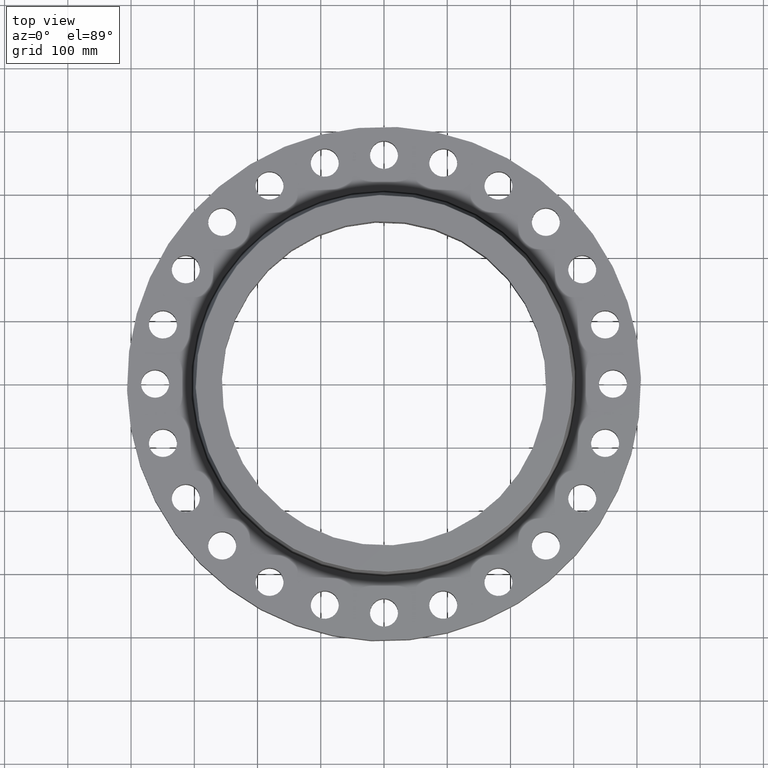
[diagram: clean part render]
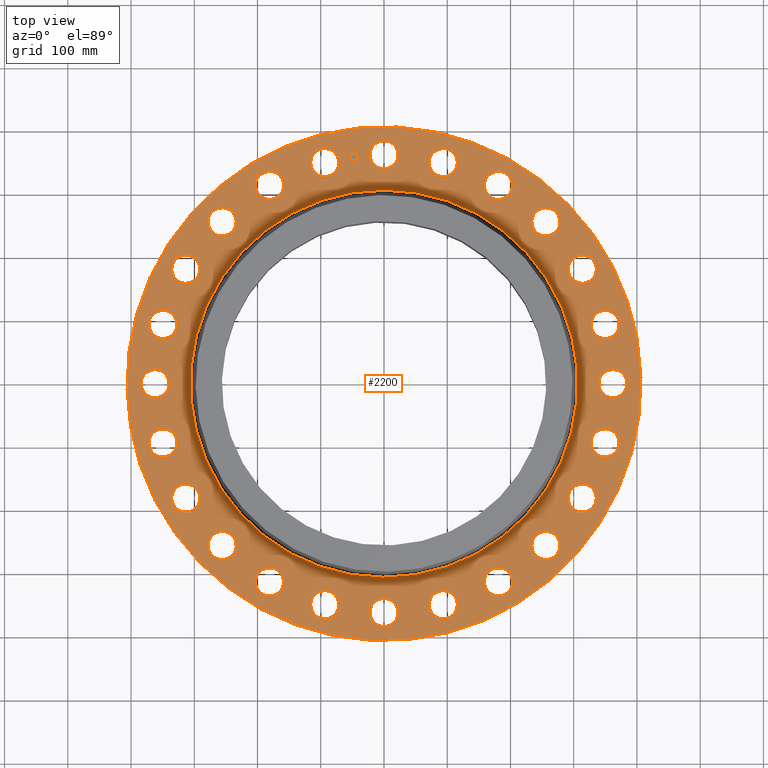
[diagram: same view with one face highlighted and labeled with its STEP entity id]
A machine part, top view. The second image highlights one B-rep face of the part: STEP entity #2200.
In plain terms, the highlighted planar face has unit normal (0, 0, -1).
Its self-contained STEP definition (entity closure, byte-faithful):
#65=AXIS2_PLACEMENT_3D('Circle Axis2P3D',#63,#64,$) ;
#82=AXIS2_PLACEMENT_3D('Circle Axis2P3D',#80,#81,$) ;
#115=AXIS2_PLACEMENT_3D('Circle Axis2P3D',#113,#114,$) ;
#139=AXIS2_PLACEMENT_3D('Circle Axis2P3D',#137,#138,$) ;
#156=AXIS2_PLACEMENT_3D('Circle Axis2P3D',#154,#155,$) ;
#191=AXIS2_PLACEMENT_3D('Circle Axis2P3D',#189,#190,$) ;
#873=AXIS2_PLACEMENT_3D('Circle Axis2P3D',#871,#872,$) ;
#885=AXIS2_PLACEMENT_3D('Circle Axis2P3D',#883,#884,$) ;
#916=AXIS2_PLACEMENT_3D('Circle Axis2P3D',#914,#915,$) ;
#928=AXIS2_PLACEMENT_3D('Circle Axis2P3D',#926,#927,$) ;
#959=AXIS2_PLACEMENT_3D('Circle Axis2P3D',#957,#958,$) ;
#971=AXIS2_PLACEMENT_3D('Circle Axis2P3D',#969,#970,$) ;
#1002=AXIS2_PLACEMENT_3D('Circle Axis2P3D',#1000,#1001,$) ;
#1014=AXIS2_PLACEMENT_3D('Circle Axis2P3D',#1012,#1013,$) ;
#1045=AXIS2_PLACEMENT_3D('Circle Axis2P3D',#1043,#1044,$) ;
#1057=AXIS2_PLACEMENT_3D('Circle Axis2P3D',#1055,#1056,$) ;
#1088=AXIS2_PLACEMENT_3D('Circle Axis2P3D',#1086,#1087,$) ;
#1100=AXIS2_PLACEMENT_3D('Circle Axis2P3D',#1098,#1099,$) ;
#1131=AXIS2_PLACEMENT_3D('Circle Axis2P3D',#1129,#1130,$) ;
#1143=AXIS2_PLACEMENT_3D('Circle Axis2P3D',#1141,#1142,$) ;
#1174=AXIS2_PLACEMENT_3D('Circle Axis2P3D',#1172,#1173,$) ;
#1186=AXIS2_PLACEMENT_3D('Circle Axis2P3D',#1184,#1185,$) ;
#1217=AXIS2_PLACEMENT_3D('Circle Axis2P3D',#1215,#1216,$) ;
#1229=AXIS2_PLACEMENT_3D('Circle Axis2P3D',#1227,#1228,$) ;
#1260=AXIS2_PLACEMENT_3D('Circle Axis2P3D',#1258,#1259,$) ;
#1272=AXIS2_PLACEMENT_3D('Circle Axis2P3D',#1270,#1271,$) ;
#1303=AXIS2_PLACEMENT_3D('Circle Axis2P3D',#1301,#1302,$) ;
#1315=AXIS2_PLACEMENT_3D('Circle Axis2P3D',#1313,#1314,$) ;
#1346=AXIS2_PLACEMENT_3D('Circle Axis2P3D',#1344,#1345,$) ;
#1358=AXIS2_PLACEMENT_3D('Circle Axis2P3D',#1356,#1357,$) ;
#1389=AXIS2_PLACEMENT_3D('Circle Axis2P3D',#1387,#1388,$) ;
#1401=AXIS2_PLACEMENT_3D('Circle Axis2P3D',#1399,#1400,$) ;
#1432=AXIS2_PLACEMENT_3D('Circle Axis2P3D',#1430,#1431,$) ;
#1444=AXIS2_PLACEMENT_3D('Circle Axis2P3D',#1442,#1443,$) ;
#1475=AXIS2_PLACEMENT_3D('Circle Axis2P3D',#1473,#1474,$) ;
#1487=AXIS2_PLACEMENT_3D('Circle Axis2P3D',#1485,#1486,$) ;
#1518=AXIS2_PLACEMENT_3D('Circle Axis2P3D',#1516,#1517,$) ;
#1530=AXIS2_PLACEMENT_3D('Circle Axis2P3D',#1528,#1529,$) ;
#1561=AXIS2_PLACEMENT_3D('Circle Axis2P3D',#1559,#1560,$) ;
#1573=AXIS2_PLACEMENT_3D('Circle Axis2P3D',#1571,#1572,$) ;
#1604=AXIS2_PLACEMENT_3D('Circle Axis2P3D',#1602,#1603,$) ;
#1616=AXIS2_PLACEMENT_3D('Circle Axis2P3D',#1614,#1615,$) ;
#1647=AXIS2_PLACEMENT_3D('Circle Axis2P3D',#1645,#1646,$) ;
#1659=AXIS2_PLACEMENT_3D('Circle Axis2P3D',#1657,#1658,$) ;
#1690=AXIS2_PLACEMENT_3D('Circle Axis2P3D',#1688,#1689,$) ;
#1702=AXIS2_PLACEMENT_3D('Circle Axis2P3D',#1700,#1701,$) ;
#1733=AXIS2_PLACEMENT_3D('Circle Axis2P3D',#1731,#1732,$) ;
#1745=AXIS2_PLACEMENT_3D('Circle Axis2P3D',#1743,#1744,$) ;
#1776=AXIS2_PLACEMENT_3D('Circle Axis2P3D',#1774,#1775,$) ;
#1788=AXIS2_PLACEMENT_3D('Circle Axis2P3D',#1786,#1787,$) ;
#1819=AXIS2_PLACEMENT_3D('Circle Axis2P3D',#1817,#1818,$) ;
#1831=AXIS2_PLACEMENT_3D('Circle Axis2P3D',#1829,#1830,$) ;
#2076=AXIS2_PLACEMENT_3D('Plane Axis2P3D',#2073,#2074,#2075) ;
#2184=AXIS2_PLACEMENT_3D('Circle Axis2P3D',#2182,#2183,$) ;
#2193=AXIS2_PLACEMENT_3D('Circle Axis2P3D',#2191,#2192,$) ;
#46=CARTESIAN_POINT('Vertex',(-0.767884741657,14.6694973463,3.50000000001)) ;
#60=CARTESIAN_POINT('Vertex',(0.767884741657,13.8305026538,3.50000000001)) ;
#63=CARTESIAN_POINT('Axis2P3D Location',(0.,14.2500000001,3.50000000001)) ;
#80=CARTESIAN_POINT('Axis2P3D Location',(0.,14.2500000001,3.50000000001)) ;
#110=CARTESIAN_POINT('Vertex',(-7.6708086177,-14.0413209903,3.50000000001)) ;
#113=CARTESIAN_POINT('Axis2P3D Location',(0.,0.,3.50000000001)) ;
#117=CARTESIAN_POINT('Vertex',(7.6708086177,14.0413209903,3.50000000001)) ;
#137=CARTESIAN_POINT('Axis2P3D Location',(0.,0.,3.50000000001)) ;
#154=CARTESIAN_POINT('Axis2P3D Location',(0.,0.,3.50000000001)) ;
#158=CARTESIAN_POINT('Vertex',(5.77724361083,10.575173495,3.50000000001)) ;
#160=CARTESIAN_POINT('Vertex',(-5.77724361083,-10.575173495,3.50000000001)) ;
#189=CARTESIAN_POINT('Axis2P3D Location',(0.,0.,3.50000000001)) ;
#861=CARTESIAN_POINT('Vertex',(-3.05502559173,-14.3683895411,3.50000000001)) ;
#868=CARTESIAN_POINT('Vertex',(-4.32131719372,-13.1604965083,3.50000000001)) ;
#871=CARTESIAN_POINT('Axis2P3D Location',(-3.68817139273,-13.7644430247,3.50000000001)) ;
#883=CARTESIAN_POINT('Axis2P3D Location',(-3.68817139273,-13.7644430247,3.50000000001)) ;
#904=CARTESIAN_POINT('Vertex',(6.66974097972,13.0880997335,3.50000000001)) ;
#911=CARTESIAN_POINT('Vertex',(7.58025902034,11.5936242745,3.50000000001)) ;
#914=CARTESIAN_POINT('Axis2P3D Location',(7.12500000003,12.340862004,3.50000000001)) ;
#926=CARTESIAN_POINT('Axis2P3D Location',(7.12500000003,12.340862004,3.50000000001)) ;
#947=CARTESIAN_POINT('Vertex',(-6.66974097972,-13.0880997335,3.50000000001)) ;
#954=CARTESIAN_POINT('Vertex',(-7.58025902034,-11.5936242745,3.50000000001)) ;
#957=CARTESIAN_POINT('Axis2P3D Location',(-7.12500000003,-12.340862004,3.50000000001)) ;
#969=CARTESIAN_POINT('Axis2P3D Location',(-7.12500000003,-12.340862004,3.50000000001)) ;
#990=CARTESIAN_POINT('Vertex',(9.8299245422,10.9158775582,3.50000000001)) ;
#997=CARTESIAN_POINT('Vertex',(10.3226187217,9.23666570571,3.50000000001)) ;
#1000=CARTESIAN_POINT('Axis2P3D Location',(10.0762716319,10.0762716319,3.50000000001)) ;
#1012=CARTESIAN_POINT('Axis2P3D Location',(10.0762716319,10.0762716319,3.50000000001)) ;
#1033=CARTESIAN_POINT('Vertex',(-9.8299245422,-10.9158775582,3.50000000001)) ;
#1040=CARTESIAN_POINT('Vertex',(-10.3226187217,-9.23666570571,3.50000000001)) ;
#1043=CARTESIAN_POINT('Axis2P3D Location',(-10.0762716319,-10.0762716319,3.50000000001)) ;
#1055=CARTESIAN_POINT('Axis2P3D Location',(-10.0762716319,-10.0762716319,3.50000000001)) ;
#1076=CARTESIAN_POINT('Vertex',(12.3202149918,7.99975636662,3.50000000001)) ;
#1083=CARTESIAN_POINT('Vertex',(12.3615090161,6.25024363343,3.50000000001)) ;
#1086=CARTESIAN_POINT('Axis2P3D Location',(12.340862004,7.12500000003,3.50000000001)) ;
#1098=CARTESIAN_POINT('Axis2P3D Location',(12.340862004,7.12500000003,3.50000000001)) ;
#1119=CARTESIAN_POINT('Vertex',(-12.3202149918,-7.99975636662,3.50000000001)) ;
#1126=CARTESIAN_POINT('Vertex',(-12.3615090161,-6.25024363343,3.50000000001)) ;
#1129=CARTESIAN_POINT('Axis2P3D Location',(-12.340862004,-7.12500000003,3.50000000001)) ;
#1141=CARTESIAN_POINT('Axis2P3D Location',(-12.340862004,-7.12500000003,3.50000000001)) ;
#1162=CARTESIAN_POINT('Vertex',(13.9709031499,4.53846499889,3.50000000001)) ;
#1169=CARTESIAN_POINT('Vertex',(13.5579828994,2.83787778656,3.50000000001)) ;
#1172=CARTESIAN_POINT('Axis2P3D Location',(13.7644430247,3.68817139273,3.50000000001)) ;
#1184=CARTESIAN_POINT('Axis2P3D Location',(13.7644430247,3.68817139273,3.50000000001)) ;
#1205=CARTESIAN_POINT('Vertex',(-13.9709031499,-4.53846499889,3.50000000001)) ;
#1212=CARTESIAN_POINT('Vertex',(-13.5579828994,-2.83787778656,3.50000000001)) ;
#1215=CARTESIAN_POINT('Axis2P3D Location',(-13.7644430247,-3.68817139273,3.50000000001)) ;
#1227=CARTESIAN_POINT('Axis2P3D Location',(-13.7644430247,-3.68817139273,3.50000000001)) ;
#1248=CARTESIAN_POINT('Vertex',(14.6694973463,0.767884741657,3.50000000001)) ;
#1255=CARTESIAN_POINT('Vertex',(13.8305026538,-0.767884741657,3.50000000001)) ;
#1258=CARTESIAN_POINT('Axis2P3D Location',(14.2500000001,-1.36536903201E-015,3.50000000001)) ;
#1270=CARTESIAN_POINT('Axis2P3D Location',(14.2500000001,-1.36536903201E-015,3.50000000001)) ;
#1291=CARTESIAN_POINT('Vertex',(-14.6694973463,-0.767884741657,3.50000000001)) ;
#1298=CARTESIAN_POINT('Vertex',(-13.8305026538,0.767884741657,3.50000000001)) ;
#1301=CARTESIAN_POINT('Axis2P3D Location',(-14.2500000001,-2.61768253319E-015,3.50000000001)) ;
#1313=CARTESIAN_POINT('Axis2P3D Location',(-14.2500000001,-2.61768253319E-015,3.50000000001)) ;
#1334=CARTESIAN_POINT('Vertex',(14.3683895411,-3.05502559173,3.50000000001)) ;
#1341=CARTESIAN_POINT('Vertex',(13.1604965083,-4.32131719372,3.50000000001)) ;
#1344=CARTESIAN_POINT('Axis2P3D Location',(13.7644430247,-3.68817139273,3.50000000001)) ;
#1356=CARTESIAN_POINT('Axis2P3D Location',(13.7644430247,-3.68817139273,3.50000000001)) ;
#1377=CARTESIAN_POINT('Vertex',(-14.3683895411,3.05502559173,3.50000000001)) ;
#1384=CARTESIAN_POINT('Vertex',(-13.1604965083,4.32131719372,3.50000000001)) ;
#1387=CARTESIAN_POINT('Axis2P3D Location',(-13.7644430247,3.68817139273,3.50000000001)) ;
#1399=CARTESIAN_POINT('Axis2P3D Location',(-13.7644430247,3.68817139273,3.50000000001)) ;
#1420=CARTESIAN_POINT('Vertex',(13.0880997335,-6.66974097972,3.50000000001)) ;
#1427=CARTESIAN_POINT('Vertex',(11.5936242745,-7.58025902034,3.50000000001)) ;
#1430=CARTESIAN_POINT('Axis2P3D Location',(12.340862004,-7.12500000003,3.50000000001)) ;
#1442=CARTESIAN_POINT('Axis2P3D Location',(12.340862004,-7.12500000003,3.50000000001)) ;
#1463=CARTESIAN_POINT('Vertex',(-13.0880997335,6.66974097972,3.50000000001)) ;
#1470=CARTESIAN_POINT('Vertex',(-11.5936242745,7.58025902034,3.50000000001)) ;
#1473=CARTESIAN_POINT('Axis2P3D Location',(-12.340862004,7.12500000003,3.50000000001)) ;
#1485=CARTESIAN_POINT('Axis2P3D Location',(-12.340862004,7.12500000003,3.50000000001)) ;
#1506=CARTESIAN_POINT('Vertex',(10.9158775582,-9.8299245422,3.50000000001)) ;
#1513=CARTESIAN_POINT('Vertex',(9.23666570571,-10.3226187217,3.50000000001)) ;
#1516=CARTESIAN_POINT('Axis2P3D Location',(10.0762716319,-10.0762716319,3.50000000001)) ;
#1528=CARTESIAN_POINT('Axis2P3D Location',(10.0762716319,-10.0762716319,3.50000000001)) ;
#1549=CARTESIAN_POINT('Vertex',(-10.9158775582,9.8299245422,3.50000000001)) ;
#1556=CARTESIAN_POINT('Vertex',(-9.23666570571,10.3226187217,3.50000000001)) ;
#1559=CARTESIAN_POINT('Axis2P3D Location',(-10.0762716319,10.0762716319,3.50000000001)) ;
#1571=CARTESIAN_POINT('Axis2P3D Location',(-10.0762716319,10.0762716319,3.50000000001)) ;
#1592=CARTESIAN_POINT('Vertex',(7.99975636662,-12.3202149918,3.50000000001)) ;
#1599=CARTESIAN_POINT('Vertex',(6.25024363343,-12.3615090161,3.50000000001)) ;
#1602=CARTESIAN_POINT('Axis2P3D Location',(7.12500000003,-12.340862004,3.50000000001)) ;
#1614=CARTESIAN_POINT('Axis2P3D Location',(7.12500000003,-12.340862004,3.50000000001)) ;
#1635=CARTESIAN_POINT('Vertex',(-7.99975636662,12.3202149918,3.50000000001)) ;
#1642=CARTESIAN_POINT('Vertex',(-6.25024363343,12.3615090161,3.50000000001)) ;
#1645=CARTESIAN_POINT('Axis2P3D Location',(-7.12500000003,12.340862004,3.50000000001)) ;
#1657=CARTESIAN_POINT('Axis2P3D Location',(-7.12500000003,12.340862004,3.50000000001)) ;
#1678=CARTESIAN_POINT('Vertex',(4.53846499889,-13.9709031499,3.50000000001)) ;
#1685=CARTESIAN_POINT('Vertex',(2.83787778656,-13.5579828994,3.50000000001)) ;
#1688=CARTESIAN_POINT('Axis2P3D Location',(3.68817139273,-13.7644430247,3.50000000001)) ;
#1700=CARTESIAN_POINT('Axis2P3D Location',(3.68817139273,-13.7644430247,3.50000000001)) ;
#1721=CARTESIAN_POINT('Vertex',(-4.53846499889,13.9709031499,3.50000000001)) ;
#1728=CARTESIAN_POINT('Vertex',(-2.83787778656,13.5579828994,3.50000000001)) ;
#1731=CARTESIAN_POINT('Axis2P3D Location',(-3.68817139273,13.7644430247,3.50000000001)) ;
#1743=CARTESIAN_POINT('Axis2P3D Location',(-3.68817139273,13.7644430247,3.50000000001)) ;
#1764=CARTESIAN_POINT('Vertex',(0.767884741657,-14.6694973463,3.50000000001)) ;
#1771=CARTESIAN_POINT('Vertex',(-0.767884741657,-13.8305026538,3.50000000001)) ;
#1774=CARTESIAN_POINT('Axis2P3D Location',(1.74512168879E-015,-14.2500000001,3.50000000001)) ;
#1786=CARTESIAN_POINT('Axis2P3D Location',(1.74512168879E-015,-14.2500000001,3.50000000001)) ;
#1807=CARTESIAN_POINT('Vertex',(3.05502559173,14.3683895411,3.50000000001)) ;
#1814=CARTESIAN_POINT('Vertex',(4.32131719372,13.1604965083,3.50000000001)) ;
#1817=CARTESIAN_POINT('Axis2P3D Location',(3.68817139273,13.7644430247,3.50000000001)) ;
#1829=CARTESIAN_POINT('Axis2P3D Location',(3.68817139273,13.7644430247,3.50000000001)) ;
#2073=CARTESIAN_POINT('Axis2P3D Location',(0.,16.0000000001,3.50000000001)) ;
#2182=CARTESIAN_POINT('Axis2P3D Location',(-1.85999823914,14.1280892746,3.50000000001)) ;
#2186=CARTESIAN_POINT('Vertex',(-2.10538084233,14.0957840421,3.50000000001)) ;
#2188=CARTESIAN_POINT('Vertex',(-1.61461563595,14.1603945072,3.50000000001)) ;
#2191=CARTESIAN_POINT('Axis2P3D Location',(-1.85999823914,14.1280892746,3.50000000001)) ;
#64=DIRECTION('Axis2P3D Direction',(0.,-0.,-0.0393700787402)) ;
#81=DIRECTION('Axis2P3D Direction',(0.,-0.,-0.0393700787402)) ;
#114=DIRECTION('Axis2P3D Direction',(0.,0.,-0.0393700787402)) ;
#138=DIRECTION('Axis2P3D Direction',(0.,0.,-0.0393700787402)) ;
#155=DIRECTION('Axis2P3D Direction',(0.,0.,-0.0393700787402)) ;
#190=DIRECTION('Axis2P3D Direction',(0.,0.,-0.0393700787402)) ;
#872=DIRECTION('Axis2P3D Direction',(0.,0.,-0.0393700787402)) ;
#884=DIRECTION('Axis2P3D Direction',(0.,0.,-0.0393700787402)) ;
#915=DIRECTION('Axis2P3D Direction',(0.,-0.,-0.0393700787402)) ;
#927=DIRECTION('Axis2P3D Direction',(0.,-0.,-0.0393700787402)) ;
#958=DIRECTION('Axis2P3D Direction',(0.,0.,-0.0393700787402)) ;
#970=DIRECTION('Axis2P3D Direction',(0.,0.,-0.0393700787402)) ;
#1001=DIRECTION('Axis2P3D Direction',(0.,-0.,-0.0393700787402)) ;
#1013=DIRECTION('Axis2P3D Direction',(0.,-0.,-0.0393700787402)) ;
#1044=DIRECTION('Axis2P3D Direction',(0.,0.,-0.0393700787402)) ;
#1056=DIRECTION('Axis2P3D Direction',(0.,0.,-0.0393700787402)) ;
#1087=DIRECTION('Axis2P3D Direction',(0.,-0.,-0.0393700787402)) ;
#1099=DIRECTION('Axis2P3D Direction',(0.,-0.,-0.0393700787402)) ;
#1130=DIRECTION('Axis2P3D Direction',(0.,0.,-0.0393700787402)) ;
#1142=DIRECTION('Axis2P3D Direction',(0.,0.,-0.0393700787402)) ;
#1173=DIRECTION('Axis2P3D Direction',(0.,-0.,-0.0393700787402)) ;
#1185=DIRECTION('Axis2P3D Direction',(0.,-0.,-0.0393700787402)) ;
#1216=DIRECTION('Axis2P3D Direction',(0.,0.,-0.0393700787402)) ;
#1228=DIRECTION('Axis2P3D Direction',(0.,0.,-0.0393700787402)) ;
#1259=DIRECTION('Axis2P3D Direction',(0.,-0.,-0.0393700787402)) ;
#1271=DIRECTION('Axis2P3D Direction',(0.,-0.,-0.0393700787402)) ;
#1302=DIRECTION('Axis2P3D Direction',(0.,0.,-0.0393700787402)) ;
#1314=DIRECTION('Axis2P3D Direction',(0.,0.,-0.0393700787402)) ;
#1345=DIRECTION('Axis2P3D Direction',(-0.,0.,-0.0393700787402)) ;
#1357=DIRECTION('Axis2P3D Direction',(-0.,0.,-0.0393700787402)) ;
#1388=DIRECTION('Axis2P3D Direction',(0.,0.,-0.0393700787402)) ;
#1400=DIRECTION('Axis2P3D Direction',(0.,0.,-0.0393700787402)) ;
#1431=DIRECTION('Axis2P3D Direction',(-0.,0.,-0.0393700787402)) ;
#1443=DIRECTION('Axis2P3D Direction',(-0.,0.,-0.0393700787402)) ;
#1474=DIRECTION('Axis2P3D Direction',(0.,0.,-0.0393700787402)) ;
#1486=DIRECTION('Axis2P3D Direction',(0.,0.,-0.0393700787402)) ;
#1517=DIRECTION('Axis2P3D Direction',(-0.,0.,-0.0393700787402)) ;
#1529=DIRECTION('Axis2P3D Direction',(-0.,0.,-0.0393700787402)) ;
#1560=DIRECTION('Axis2P3D Direction',(0.,0.,-0.0393700787402)) ;
#1572=DIRECTION('Axis2P3D Direction',(0.,0.,-0.0393700787402)) ;
#1603=DIRECTION('Axis2P3D Direction',(-0.,0.,-0.0393700787402)) ;
#1615=DIRECTION('Axis2P3D Direction',(-0.,0.,-0.0393700787402)) ;
#1646=DIRECTION('Axis2P3D Direction',(0.,0.,-0.0393700787402)) ;
#1658=DIRECTION('Axis2P3D Direction',(0.,0.,-0.0393700787402)) ;
#1689=DIRECTION('Axis2P3D Direction',(-0.,0.,-0.0393700787402)) ;
#1701=DIRECTION('Axis2P3D Direction',(-0.,0.,-0.0393700787402)) ;
#1732=DIRECTION('Axis2P3D Direction',(0.,0.,-0.0393700787402)) ;
#1744=DIRECTION('Axis2P3D Direction',(0.,0.,-0.0393700787402)) ;
#1775=DIRECTION('Axis2P3D Direction',(-0.,0.,-0.0393700787402)) ;
#1787=DIRECTION('Axis2P3D Direction',(-0.,0.,-0.0393700787402)) ;
#1818=DIRECTION('Axis2P3D Direction',(0.,-0.,-0.0393700787402)) ;
#1830=DIRECTION('Axis2P3D Direction',(0.,-0.,-0.0393700787402)) ;
#2074=DIRECTION('Axis2P3D Direction',(0.,0.,-0.0393700787402)) ;
#2075=DIRECTION('Axis2P3D XDirection',(0.0393700787402,0.,0.)) ;
#2183=DIRECTION('Axis2P3D Direction',(0.,0.,-0.0393700787402)) ;
#2192=DIRECTION('Axis2P3D Direction',(0.,0.,-0.0393700787402)) ;
#2079=ORIENTED_EDGE('',*,*,#141,.F.) ;
#2080=ORIENTED_EDGE('',*,*,#119,.F.) ;
#2083=ORIENTED_EDGE('',*,*,#67,.T.) ;
#2084=ORIENTED_EDGE('',*,*,#84,.T.) ;
#2087=ORIENTED_EDGE('',*,*,#193,.T.) ;
#2088=ORIENTED_EDGE('',*,*,#162,.T.) ;
#2091=ORIENTED_EDGE('',*,*,#1833,.T.) ;
#2092=ORIENTED_EDGE('',*,*,#1821,.T.) ;
#2095=ORIENTED_EDGE('',*,*,#930,.T.) ;
#2096=ORIENTED_EDGE('',*,*,#918,.T.) ;
#2099=ORIENTED_EDGE('',*,*,#1016,.T.) ;
#2100=ORIENTED_EDGE('',*,*,#1004,.T.) ;
#2103=ORIENTED_EDGE('',*,*,#1102,.T.) ;
#2104=ORIENTED_EDGE('',*,*,#1090,.T.) ;
#2107=ORIENTED_EDGE('',*,*,#1188,.T.) ;
#2108=ORIENTED_EDGE('',*,*,#1176,.T.) ;
#2111=ORIENTED_EDGE('',*,*,#1274,.T.) ;
#2112=ORIENTED_EDGE('',*,*,#1262,.T.) ;
#2115=ORIENTED_EDGE('',*,*,#1360,.T.) ;
#2116=ORIENTED_EDGE('',*,*,#1348,.T.) ;
#2119=ORIENTED_EDGE('',*,*,#1446,.T.) ;
#2120=ORIENTED_EDGE('',*,*,#1434,.T.) ;
#2123=ORIENTED_EDGE('',*,*,#1532,.T.) ;
#2124=ORIENTED_EDGE('',*,*,#1520,.T.) ;
#2127=ORIENTED_EDGE('',*,*,#1618,.T.) ;
#2128=ORIENTED_EDGE('',*,*,#1606,.T.) ;
#2131=ORIENTED_EDGE('',*,*,#1704,.T.) ;
#2132=ORIENTED_EDGE('',*,*,#1692,.T.) ;
#2135=ORIENTED_EDGE('',*,*,#1790,.T.) ;
#2136=ORIENTED_EDGE('',*,*,#1778,.T.) ;
#2139=ORIENTED_EDGE('',*,*,#887,.T.) ;
#2140=ORIENTED_EDGE('',*,*,#875,.T.) ;
#2143=ORIENTED_EDGE('',*,*,#973,.T.) ;
#2144=ORIENTED_EDGE('',*,*,#961,.T.) ;
#2147=ORIENTED_EDGE('',*,*,#1059,.T.) ;
#2148=ORIENTED_EDGE('',*,*,#1047,.T.) ;
#2151=ORIENTED_EDGE('',*,*,#1145,.T.) ;
#2152=ORIENTED_EDGE('',*,*,#1133,.T.) ;
#2155=ORIENTED_EDGE('',*,*,#1231,.T.) ;
#2156=ORIENTED_EDGE('',*,*,#1219,.T.) ;
#2159=ORIENTED_EDGE('',*,*,#1317,.T.) ;
#2160=ORIENTED_EDGE('',*,*,#1305,.T.) ;
#2163=ORIENTED_EDGE('',*,*,#1403,.T.) ;
#2164=ORIENTED_EDGE('',*,*,#1391,.T.) ;
#2167=ORIENTED_EDGE('',*,*,#1489,.T.) ;
#2168=ORIENTED_EDGE('',*,*,#1477,.T.) ;
#2171=ORIENTED_EDGE('',*,*,#1575,.T.) ;
#2172=ORIENTED_EDGE('',*,*,#1563,.T.) ;
#2175=ORIENTED_EDGE('',*,*,#1661,.T.) ;
#2176=ORIENTED_EDGE('',*,*,#1649,.T.) ;
#2179=ORIENTED_EDGE('',*,*,#1747,.T.) ;
#2180=ORIENTED_EDGE('',*,*,#1735,.T.) ;
#2197=ORIENTED_EDGE('',*,*,#2190,.T.) ;
#2198=ORIENTED_EDGE('',*,*,#2195,.T.) ;
#2085=FACE_BOUND('',#2082,.T.) ;
#2089=FACE_BOUND('',#2086,.T.) ;
#2093=FACE_BOUND('',#2090,.T.) ;
#2097=FACE_BOUND('',#2094,.T.) ;
#2101=FACE_BOUND('',#2098,.T.) ;
#2105=FACE_BOUND('',#2102,.T.) ;
#2109=FACE_BOUND('',#2106,.T.) ;
#2113=FACE_BOUND('',#2110,.T.) ;
#2117=FACE_BOUND('',#2114,.T.) ;
#2121=FACE_BOUND('',#2118,.T.) ;
#2125=FACE_BOUND('',#2122,.T.) ;
#2129=FACE_BOUND('',#2126,.T.) ;
#2133=FACE_BOUND('',#2130,.T.) ;
#2137=FACE_BOUND('',#2134,.T.) ;
#2141=FACE_BOUND('',#2138,.T.) ;
#2145=FACE_BOUND('',#2142,.T.) ;
#2149=FACE_BOUND('',#2146,.T.) ;
#2153=FACE_BOUND('',#2150,.T.) ;
#2157=FACE_BOUND('',#2154,.T.) ;
#2161=FACE_BOUND('',#2158,.T.) ;
#2165=FACE_BOUND('',#2162,.T.) ;
#2169=FACE_BOUND('',#2166,.T.) ;
#2173=FACE_BOUND('',#2170,.T.) ;
#2177=FACE_BOUND('',#2174,.T.) ;
#2181=FACE_BOUND('',#2178,.T.) ;
#2199=FACE_BOUND('',#2196,.T.) ;
#2200=ADVANCED_FACE('PartBody',(#2081,#2085,#2089,#2093,#2097,#2101,#2105,#2109,#2113,#2117,#2121,#2125,#2129,#2133,#2137,#2141,#2145,#2149,#2153,#2157,#2161,#2165,#2169,#2173,#2177,#2181,#2199),#2077,.F.) ;
#66=CIRCLE('generated circle',#65,0.875000000004) ;
#83=CIRCLE('generated circle',#82,0.875000000004) ;
#116=CIRCLE('generated circle',#115,16.0000000001) ;
#140=CIRCLE('generated circle',#139,16.0000000001) ;
#157=CIRCLE('generated circle',#156,12.0503459779) ;
#192=CIRCLE('generated circle',#191,12.0503459779) ;
#874=CIRCLE('generated circle',#873,0.875000000004) ;
#886=CIRCLE('generated circle',#885,0.875000000004) ;
#917=CIRCLE('generated circle',#916,0.875000000004) ;
#929=CIRCLE('generated circle',#928,0.875000000004) ;
#960=CIRCLE('generated circle',#959,0.875000000003) ;
#972=CIRCLE('generated circle',#971,0.875000000003) ;
#1003=CIRCLE('generated circle',#1002,0.875000000003) ;
#1015=CIRCLE('generated circle',#1014,0.875000000003) ;
#1046=CIRCLE('generated circle',#1045,0.875000000003) ;
#1058=CIRCLE('generated circle',#1057,0.875000000003) ;
#1089=CIRCLE('generated circle',#1088,0.875000000003) ;
#1101=CIRCLE('generated circle',#1100,0.875000000003) ;
#1132=CIRCLE('generated circle',#1131,0.875000000003) ;
#1144=CIRCLE('generated circle',#1143,0.875000000003) ;
#1175=CIRCLE('generated circle',#1174,0.875000000004) ;
#1187=CIRCLE('generated circle',#1186,0.875000000004) ;
#1218=CIRCLE('generated circle',#1217,0.875000000004) ;
#1230=CIRCLE('generated circle',#1229,0.875000000004) ;
#1261=CIRCLE('generated circle',#1260,0.875000000004) ;
#1273=CIRCLE('generated circle',#1272,0.875000000004) ;
#1304=CIRCLE('generated circle',#1303,0.875000000004) ;
#1316=CIRCLE('generated circle',#1315,0.875000000004) ;
#1347=CIRCLE('generated circle',#1346,0.875000000004) ;
#1359=CIRCLE('generated circle',#1358,0.875000000004) ;
#1390=CIRCLE('generated circle',#1389,0.875000000004) ;
#1402=CIRCLE('generated circle',#1401,0.875000000004) ;
#1433=CIRCLE('generated circle',#1432,0.875000000004) ;
#1445=CIRCLE('generated circle',#1444,0.875000000004) ;
#1476=CIRCLE('generated circle',#1475,0.875000000003) ;
#1488=CIRCLE('generated circle',#1487,0.875000000003) ;
#1519=CIRCLE('generated circle',#1518,0.875000000003) ;
#1531=CIRCLE('generated circle',#1530,0.875000000003) ;
#1562=CIRCLE('generated circle',#1561,0.875000000004) ;
#1574=CIRCLE('generated circle',#1573,0.875000000004) ;
#1605=CIRCLE('generated circle',#1604,0.875000000004) ;
#1617=CIRCLE('generated circle',#1616,0.875000000004) ;
#1648=CIRCLE('generated circle',#1647,0.875000000003) ;
#1660=CIRCLE('generated circle',#1659,0.875000000003) ;
#1691=CIRCLE('generated circle',#1690,0.875000000004) ;
#1703=CIRCLE('generated circle',#1702,0.875000000004) ;
#1734=CIRCLE('generated circle',#1733,0.875000000004) ;
#1746=CIRCLE('generated circle',#1745,0.875000000004) ;
#1777=CIRCLE('generated circle',#1776,0.875000000004) ;
#1789=CIRCLE('generated circle',#1788,0.875000000004) ;
#1820=CIRCLE('generated circle',#1819,0.875000000004) ;
#1832=CIRCLE('generated circle',#1831,0.875000000004) ;
#2185=CIRCLE('generated circle',#2184,0.247500000001) ;
#2194=CIRCLE('generated circle',#2193,0.247500000001) ;
#67=EDGE_CURVE('',#47,#61,#66,.T.) ;
#84=EDGE_CURVE('',#61,#47,#83,.T.) ;
#119=EDGE_CURVE('',#111,#118,#116,.T.) ;
#141=EDGE_CURVE('',#118,#111,#140,.T.) ;
#162=EDGE_CURVE('',#159,#161,#157,.T.) ;
#193=EDGE_CURVE('',#161,#159,#192,.T.) ;
#875=EDGE_CURVE('',#862,#869,#874,.T.) ;
#887=EDGE_CURVE('',#869,#862,#886,.T.) ;
#918=EDGE_CURVE('',#905,#912,#917,.T.) ;
#930=EDGE_CURVE('',#912,#905,#929,.T.) ;
#961=EDGE_CURVE('',#948,#955,#960,.T.) ;
#973=EDGE_CURVE('',#955,#948,#972,.T.) ;
#1004=EDGE_CURVE('',#991,#998,#1003,.T.) ;
#1016=EDGE_CURVE('',#998,#991,#1015,.T.) ;
#1047=EDGE_CURVE('',#1034,#1041,#1046,.T.) ;
#1059=EDGE_CURVE('',#1041,#1034,#1058,.T.) ;
#1090=EDGE_CURVE('',#1077,#1084,#1089,.T.) ;
#1102=EDGE_CURVE('',#1084,#1077,#1101,.T.) ;
#1133=EDGE_CURVE('',#1120,#1127,#1132,.T.) ;
#1145=EDGE_CURVE('',#1127,#1120,#1144,.T.) ;
#1176=EDGE_CURVE('',#1163,#1170,#1175,.T.) ;
#1188=EDGE_CURVE('',#1170,#1163,#1187,.T.) ;
#1219=EDGE_CURVE('',#1206,#1213,#1218,.T.) ;
#1231=EDGE_CURVE('',#1213,#1206,#1230,.T.) ;
#1262=EDGE_CURVE('',#1249,#1256,#1261,.T.) ;
#1274=EDGE_CURVE('',#1256,#1249,#1273,.T.) ;
#1305=EDGE_CURVE('',#1292,#1299,#1304,.T.) ;
#1317=EDGE_CURVE('',#1299,#1292,#1316,.T.) ;
#1348=EDGE_CURVE('',#1335,#1342,#1347,.T.) ;
#1360=EDGE_CURVE('',#1342,#1335,#1359,.T.) ;
#1391=EDGE_CURVE('',#1378,#1385,#1390,.T.) ;
#1403=EDGE_CURVE('',#1385,#1378,#1402,.T.) ;
#1434=EDGE_CURVE('',#1421,#1428,#1433,.T.) ;
#1446=EDGE_CURVE('',#1428,#1421,#1445,.T.) ;
#1477=EDGE_CURVE('',#1464,#1471,#1476,.T.) ;
#1489=EDGE_CURVE('',#1471,#1464,#1488,.T.) ;
#1520=EDGE_CURVE('',#1507,#1514,#1519,.T.) ;
#1532=EDGE_CURVE('',#1514,#1507,#1531,.T.) ;
#1563=EDGE_CURVE('',#1550,#1557,#1562,.T.) ;
#1575=EDGE_CURVE('',#1557,#1550,#1574,.T.) ;
#1606=EDGE_CURVE('',#1593,#1600,#1605,.T.) ;
#1618=EDGE_CURVE('',#1600,#1593,#1617,.T.) ;
#1649=EDGE_CURVE('',#1636,#1643,#1648,.T.) ;
#1661=EDGE_CURVE('',#1643,#1636,#1660,.T.) ;
#1692=EDGE_CURVE('',#1679,#1686,#1691,.T.) ;
#1704=EDGE_CURVE('',#1686,#1679,#1703,.T.) ;
#1735=EDGE_CURVE('',#1722,#1729,#1734,.T.) ;
#1747=EDGE_CURVE('',#1729,#1722,#1746,.T.) ;
#1778=EDGE_CURVE('',#1765,#1772,#1777,.T.) ;
#1790=EDGE_CURVE('',#1772,#1765,#1789,.T.) ;
#1821=EDGE_CURVE('',#1808,#1815,#1820,.T.) ;
#1833=EDGE_CURVE('',#1815,#1808,#1832,.T.) ;
#2190=EDGE_CURVE('',#2187,#2189,#2185,.T.) ;
#2195=EDGE_CURVE('',#2189,#2187,#2194,.T.) ;
#2078=EDGE_LOOP('',(#2079,#2080)) ;
#2082=EDGE_LOOP('',(#2083,#2084)) ;
#2086=EDGE_LOOP('',(#2087,#2088)) ;
#2090=EDGE_LOOP('',(#2091,#2092)) ;
#2094=EDGE_LOOP('',(#2095,#2096)) ;
#2098=EDGE_LOOP('',(#2099,#2100)) ;
#2102=EDGE_LOOP('',(#2103,#2104)) ;
#2106=EDGE_LOOP('',(#2107,#2108)) ;
#2110=EDGE_LOOP('',(#2111,#2112)) ;
#2114=EDGE_LOOP('',(#2115,#2116)) ;
#2118=EDGE_LOOP('',(#2119,#2120)) ;
#2122=EDGE_LOOP('',(#2123,#2124)) ;
#2126=EDGE_LOOP('',(#2127,#2128)) ;
#2130=EDGE_LOOP('',(#2131,#2132)) ;
#2134=EDGE_LOOP('',(#2135,#2136)) ;
#2138=EDGE_LOOP('',(#2139,#2140)) ;
#2142=EDGE_LOOP('',(#2143,#2144)) ;
#2146=EDGE_LOOP('',(#2147,#2148)) ;
#2150=EDGE_LOOP('',(#2151,#2152)) ;
#2154=EDGE_LOOP('',(#2155,#2156)) ;
#2158=EDGE_LOOP('',(#2159,#2160)) ;
#2162=EDGE_LOOP('',(#2163,#2164)) ;
#2166=EDGE_LOOP('',(#2167,#2168)) ;
#2170=EDGE_LOOP('',(#2171,#2172)) ;
#2174=EDGE_LOOP('',(#2175,#2176)) ;
#2178=EDGE_LOOP('',(#2179,#2180)) ;
#2196=EDGE_LOOP('',(#2197,#2198)) ;
#2081=FACE_OUTER_BOUND('',#2078,.T.) ;
#2077=PLANE('',#2076) ;
#47=VERTEX_POINT('',#46) ;
#61=VERTEX_POINT('',#60) ;
#111=VERTEX_POINT('',#110) ;
#118=VERTEX_POINT('',#117) ;
#159=VERTEX_POINT('',#158) ;
#161=VERTEX_POINT('',#160) ;
#862=VERTEX_POINT('',#861) ;
#869=VERTEX_POINT('',#868) ;
#905=VERTEX_POINT('',#904) ;
#912=VERTEX_POINT('',#911) ;
#948=VERTEX_POINT('',#947) ;
#955=VERTEX_POINT('',#954) ;
#991=VERTEX_POINT('',#990) ;
#998=VERTEX_POINT('',#997) ;
#1034=VERTEX_POINT('',#1033) ;
#1041=VERTEX_POINT('',#1040) ;
#1077=VERTEX_POINT('',#1076) ;
#1084=VERTEX_POINT('',#1083) ;
#1120=VERTEX_POINT('',#1119) ;
#1127=VERTEX_POINT('',#1126) ;
#1163=VERTEX_POINT('',#1162) ;
#1170=VERTEX_POINT('',#1169) ;
#1206=VERTEX_POINT('',#1205) ;
#1213=VERTEX_POINT('',#1212) ;
#1249=VERTEX_POINT('',#1248) ;
#1256=VERTEX_POINT('',#1255) ;
#1292=VERTEX_POINT('',#1291) ;
#1299=VERTEX_POINT('',#1298) ;
#1335=VERTEX_POINT('',#1334) ;
#1342=VERTEX_POINT('',#1341) ;
#1378=VERTEX_POINT('',#1377) ;
#1385=VERTEX_POINT('',#1384) ;
#1421=VERTEX_POINT('',#1420) ;
#1428=VERTEX_POINT('',#1427) ;
#1464=VERTEX_POINT('',#1463) ;
#1471=VERTEX_POINT('',#1470) ;
#1507=VERTEX_POINT('',#1506) ;
#1514=VERTEX_POINT('',#1513) ;
#1550=VERTEX_POINT('',#1549) ;
#1557=VERTEX_POINT('',#1556) ;
#1593=VERTEX_POINT('',#1592) ;
#1600=VERTEX_POINT('',#1599) ;
#1636=VERTEX_POINT('',#1635) ;
#1643=VERTEX_POINT('',#1642) ;
#1679=VERTEX_POINT('',#1678) ;
#1686=VERTEX_POINT('',#1685) ;
#1722=VERTEX_POINT('',#1721) ;
#1729=VERTEX_POINT('',#1728) ;
#1765=VERTEX_POINT('',#1764) ;
#1772=VERTEX_POINT('',#1771) ;
#1808=VERTEX_POINT('',#1807) ;
#1815=VERTEX_POINT('',#1814) ;
#2187=VERTEX_POINT('',#2186) ;
#2189=VERTEX_POINT('',#2188) ;